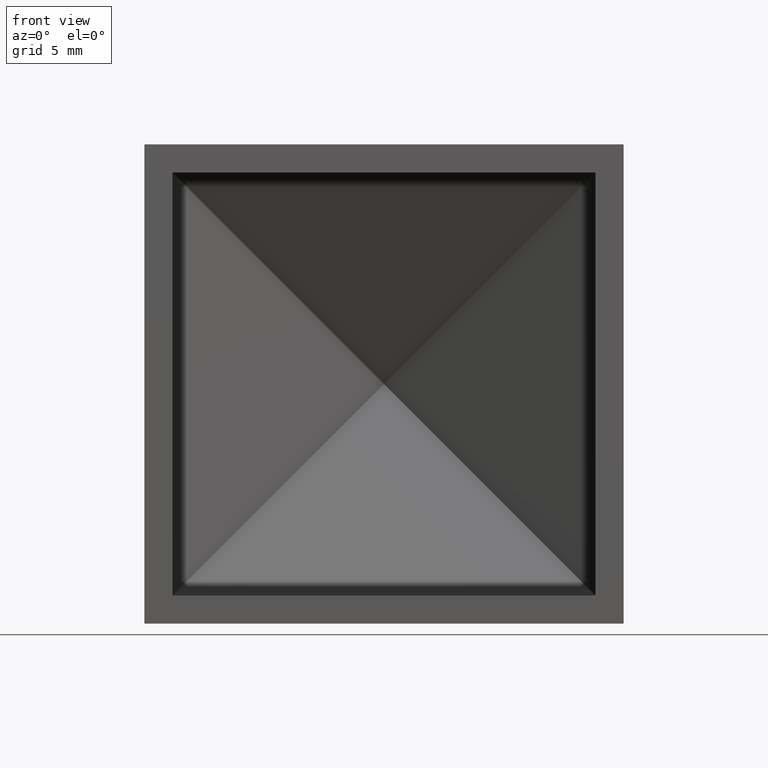
[diagram: clean part render]
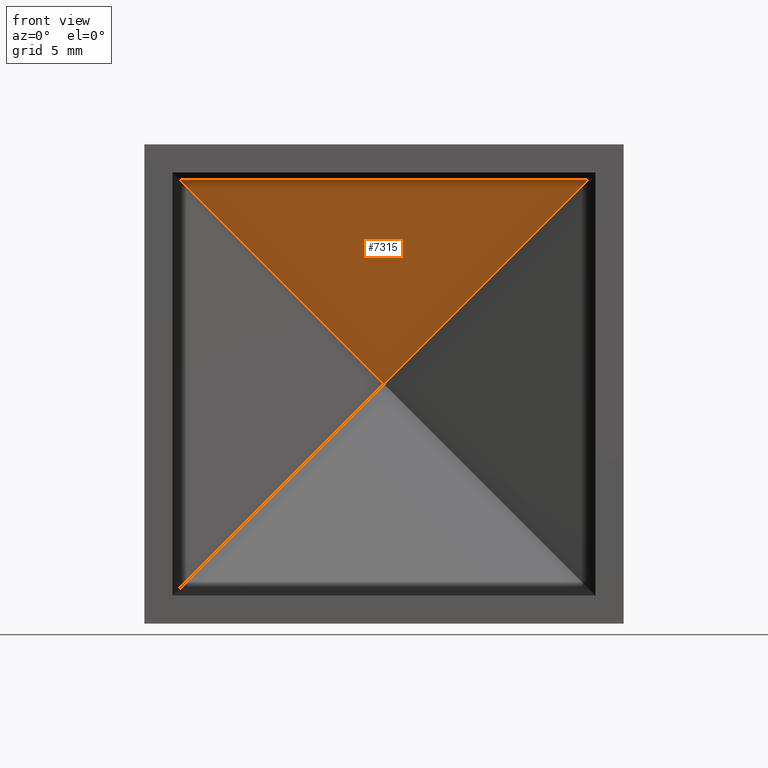
[diagram: same view with one face highlighted and labeled with its STEP entity id]
A machine part, front view. The second image highlights one B-rep face of the part: STEP entity #7315.
In plain terms, the highlighted planar face has unit normal (0, 0.8726, 0.4884).
Its self-contained STEP definition (entity closure, byte-faithful):
#57 = ORIENTED_EDGE ( 'NONE', *, *, #9701, .F. ) ;
#152 = CARTESIAN_POINT ( 'NONE',  ( -17.00000000000001776, 9.113764804025290545, 14.48839221921245901 ) ) ;
#832 = DIRECTION ( 'NONE',  ( 2.168897147269769290E-16, 0.8726242262352879031, 0.4883922192124533490 ) ) ;
#1007 = DIRECTION ( 'NONE',  ( 1.000000000000000000, -1.892632194920205684E-16, -1.059272490998641920E-16 ) ) ;
#1442 = FACE_OUTER_BOUND ( 'NONE', #9044, .T. ) ;
#1656 = DIRECTION ( 'NONE',  ( -0.6574901722213156718, -0.3679855253468108378, 0.6574901722213164490 ) ) ;
#2183 = CARTESIAN_POINT ( 'NONE',  ( -14.48839221921244302, 9.113764804025292321, 14.48839221921246079 ) ) ;
#2619 = CARTESIAN_POINT ( 'NONE',  ( -7.875787243638259660, 21.63059726219517387, -7.875787243638250779 ) ) ;
#3367 = VECTOR ( 'NONE', #10440, 999.9999999999998863 ) ;
#3444 = EDGE_CURVE ( 'NONE', #9291, #4785, #10867, .T. ) ;
#3704 = CARTESIAN_POINT ( 'NONE',  ( -17.00000000000001776, 17.74201397015295001, -0.9279452165036558009 ) ) ;
#4785 = VERTEX_POINT ( 'NONE', #2183 ) ;
#4825 = PLANE ( 'NONE',  #11027 ) ;
#5106 = VECTOR ( 'NONE', #1007, 1000.000000000000000 ) ;
#5761 = CARTESIAN_POINT ( 'NONE',  ( 1.301042606982605321E-15, 17.22265957914431667, 2.602085213965210642E-15 ) ) ;
#5799 = DIRECTION ( 'NONE',  ( 0.000000000000000000, -0.4883922192124533490, 0.8726242262352879031 ) ) ;
#6407 = CARTESIAN_POINT ( 'NONE',  ( 14.48839221921246079, 9.113764804025290545, 14.48839221921245013 ) ) ;
#6700 = VERTEX_POINT ( 'NONE', #6407 ) ;
#6883 = ORIENTED_EDGE ( 'NONE', *, *, #3444, .F. ) ;
#7224 = EDGE_CURVE ( 'NONE', #4785, #6700, #9933, .T. ) ;
#7315 = ADVANCED_FACE ( 'NONE', ( #1442 ), #4825, .F. ) ;
#8326 = VECTOR ( 'NONE', #1656, 1000.000000000000000 ) ;
#8857 = ORIENTED_EDGE ( 'NONE', *, *, #7224, .F. ) ;
#9044 = EDGE_LOOP ( 'NONE', ( #57, #8857, #6883 ) ) ;
#9291 = VERTEX_POINT ( 'NONE', #5761 ) ;
#9701 = EDGE_CURVE ( 'NONE', #6700, #9291, #11984, .T. ) ;
#9933 = LINE ( 'NONE', #152, #5106 ) ;
#10210 = CARTESIAN_POINT ( 'NONE',  ( -0.8761703985032519570, 16.73228263054710396, 0.8761703985032571751 ) ) ;
#10440 = DIRECTION ( 'NONE',  ( -0.6574901722213163380, 0.3679855253468108933, -0.6574901722213158939 ) ) ;
#10867 = LINE ( 'NONE', #10210, #8326 ) ;
#11027 = AXIS2_PLACEMENT_3D ( 'NONE', #3704, #832, #5799 ) ;
#11984 = LINE ( 'NONE', #2619, #3367 ) ;